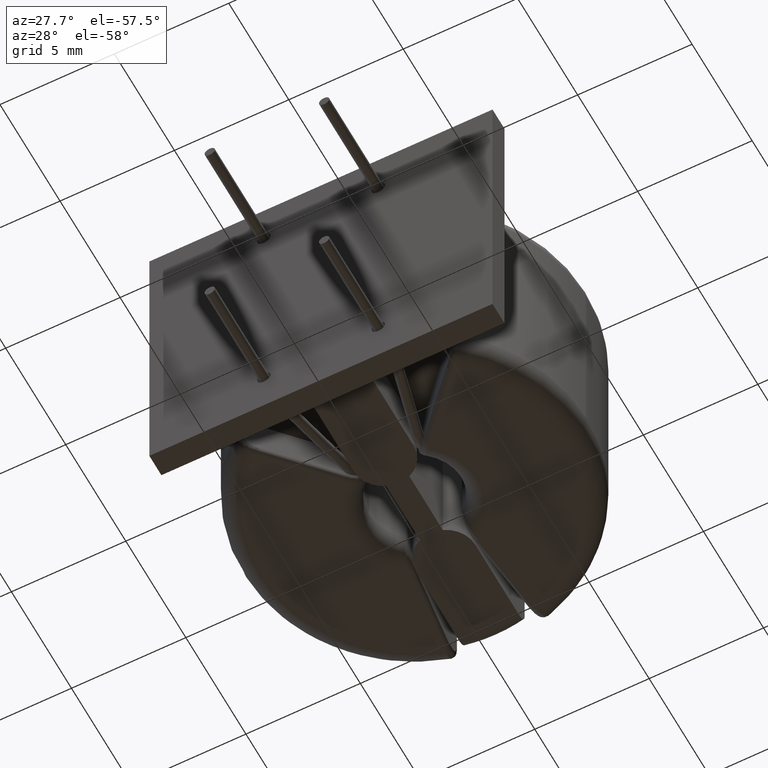
[diagram: clean part render]
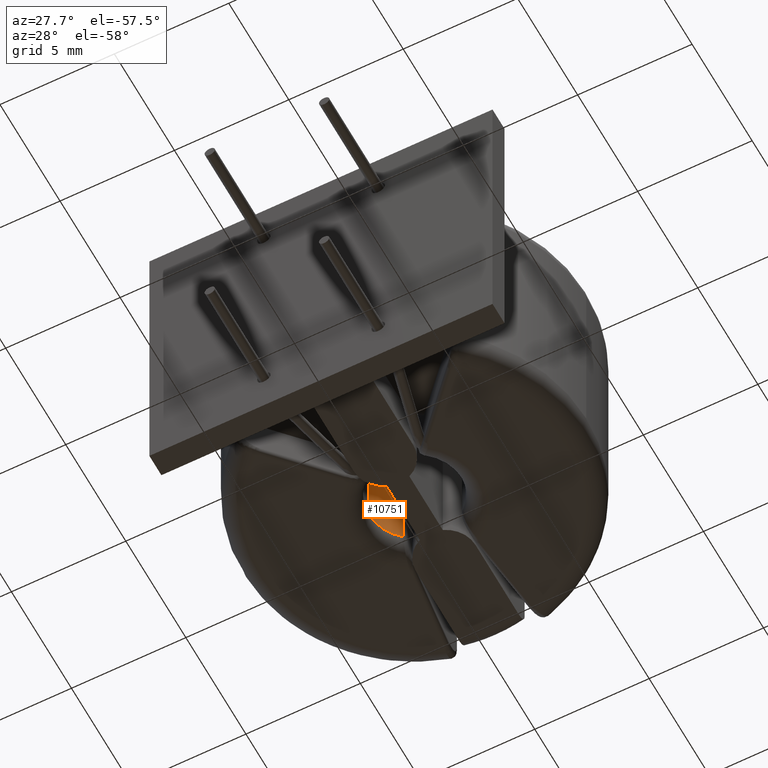
[diagram: same view with one face highlighted and labeled with its STEP entity id]
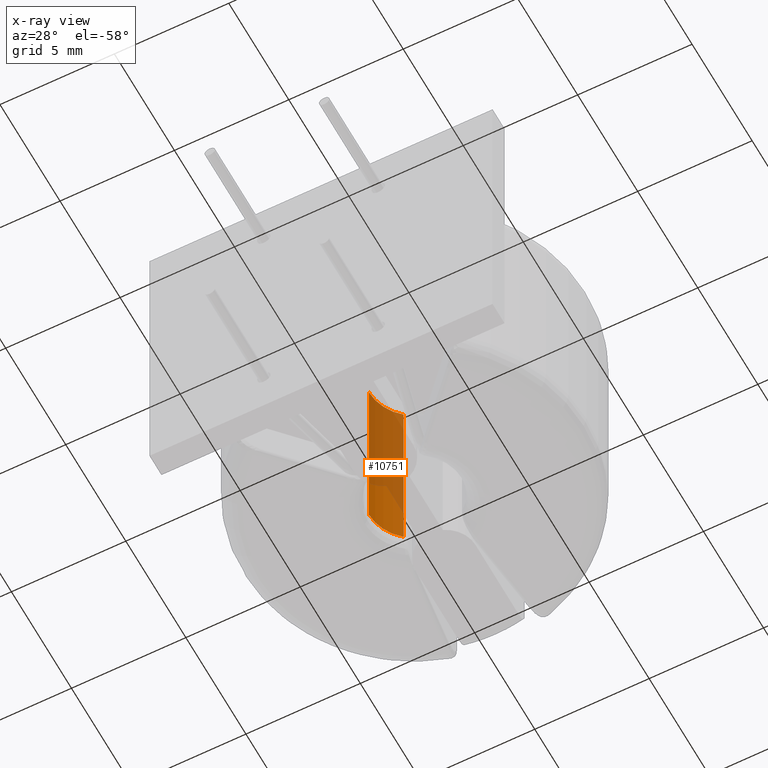
[diagram: x-ray of the same camera — body ghosted, the highlighted face saturated]
A machine part, auxiliary view. The second image highlights one B-rep face of the part: STEP entity #10751.
The next image is the same camera in x-ray: the body ghosted, the highlighted face saturated — about 70% of this face is hidden behind the body in this view.
In plain terms, the highlighted cylindrical surface (partial cylindrical patch) has radius 2 mm, axis along (-0, -0, -1).
Its self-contained STEP definition (entity closure, byte-faithful):
#272 = CARTESIAN_POINT ( 'NONE',  ( -1.284196003064234093, 1.533245129036399534, 4.400000000000000355 ) ) ;
#667 = CARTESIAN_POINT ( 'NONE',  ( -2.000000000000000000, 0.0000000000000000000, -4.399999999999999467 ) ) ;
#965 = CARTESIAN_POINT ( 'NONE',  ( -1.284196003064233871, 1.533245129036399534, 5.400000000000000355 ) ) ;
#1162 = AXIS2_PLACEMENT_3D ( 'NONE', #9367, #10336, #3707 ) ;
#1164 = DIRECTION ( 'NONE',  ( 0.0000000000000000000, 0.0000000000000000000, 1.000000000000000000 ) ) ;
#1193 = AXIS2_PLACEMENT_3D ( 'NONE', #2827, #3806, #7674 ) ;
#1284 = CARTESIAN_POINT ( 'NONE',  ( -1.284196003064234093, 1.533245129036399534, -4.399999999999999467 ) ) ;
#1734 = CARTESIAN_POINT ( 'NONE',  ( -2.000000000000000000, 0.0000000000000000000, 5.400000000000000355 ) ) ;
#1919 = VERTEX_POINT ( 'NONE', #272 ) ;
#2512 = DIRECTION ( 'NONE',  ( -0.0000000000000000000, -0.0000000000000000000, -1.000000000000000000 ) ) ;
#2827 = CARTESIAN_POINT ( 'NONE',  ( 0.0000000000000000000, 0.0000000000000000000, -4.399999999999999467 ) ) ;
#2986 = VERTEX_POINT ( 'NONE', #1284 ) ;
#3707 = DIRECTION ( 'NONE',  ( -1.000000000000000000, 0.0000000000000000000, 0.0000000000000000000 ) ) ;
#3806 = DIRECTION ( 'NONE',  ( -0.0000000000000000000, -0.0000000000000000000, -1.000000000000000000 ) ) ;
#5441 = DIRECTION ( 'NONE',  ( 0.0000000000000000000, 0.0000000000000000000, 1.000000000000000000 ) ) ;
#5572 = DIRECTION ( 'NONE',  ( 1.000000000000000000, 0.0000000000000000000, 0.0000000000000000000 ) ) ;
#6419 = ORIENTED_EDGE ( 'NONE', *, *, #9386, .T. ) ;
#6837 = LINE ( 'NONE', #1734, #6984 ) ;
#6984 = VECTOR ( 'NONE', #2512, 1000.000000000000000 ) ;
#7012 = AXIS2_PLACEMENT_3D ( 'NONE', #11415, #5441, #5572 ) ;
#7153 = FACE_OUTER_BOUND ( 'NONE', #12413, .T. ) ;
#7162 = ORIENTED_EDGE ( 'NONE', *, *, #7696, .T. ) ;
#7674 = DIRECTION ( 'NONE',  ( 1.000000000000000000, -1.776356839400250465E-15, 0.0000000000000000000 ) ) ;
#7695 = ORIENTED_EDGE ( 'NONE', *, *, #11056, .T. ) ;
#7696 = EDGE_CURVE ( 'NONE', #2986, #1919, #11001, .T. ) ;
#8023 = VERTEX_POINT ( 'NONE', #10264 ) ;
#8124 = VECTOR ( 'NONE', #1164, 1000.000000000000000 ) ;
#8374 = CYLINDRICAL_SURFACE ( 'NONE', #1162, 2.000000000000000000 ) ;
#9341 = VERTEX_POINT ( 'NONE', #667 ) ;
#9367 = CARTESIAN_POINT ( 'NONE',  ( 0.0000000000000000000, 0.0000000000000000000, 5.400000000000000355 ) ) ;
#9386 = EDGE_CURVE ( 'NONE', #9341, #2986, #12210, .T. ) ;
#10264 = CARTESIAN_POINT ( 'NONE',  ( -2.000000000000000000, 0.0000000000000000000, 4.400000000000000355 ) ) ;
#10336 = DIRECTION ( 'NONE',  ( -0.0000000000000000000, -0.0000000000000000000, -1.000000000000000000 ) ) ;
#10751 = ADVANCED_FACE ( 'NONE', ( #7153 ), #8374, .F. ) ;
#10989 = EDGE_CURVE ( 'NONE', #1919, #8023, #11689, .T. ) ;
#11001 = LINE ( 'NONE', #965, #8124 ) ;
#11056 = EDGE_CURVE ( 'NONE', #8023, #9341, #6837, .T. ) ;
#11415 = CARTESIAN_POINT ( 'NONE',  ( 0.0000000000000000000, 0.0000000000000000000, 4.400000000000000355 ) ) ;
#11480 = ORIENTED_EDGE ( 'NONE', *, *, #10989, .T. ) ;
#11689 = CIRCLE ( 'NONE', #7012, 2.000000000000000000 ) ;
#12210 = CIRCLE ( 'NONE', #1193, 2.000000000000000000 ) ;
#12413 = EDGE_LOOP ( 'NONE', ( #11480, #7695, #6419, #7162 ) ) ;